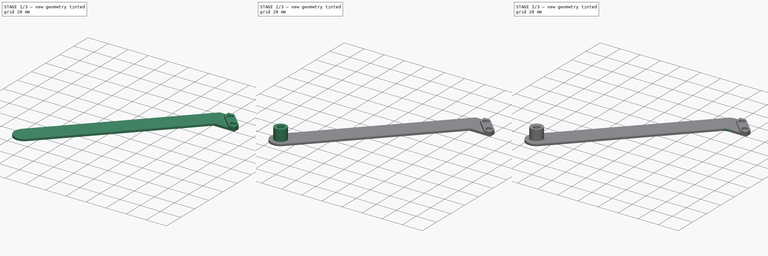
[diagram: build sequence overview — one tinted view per stage of 3, left to right]
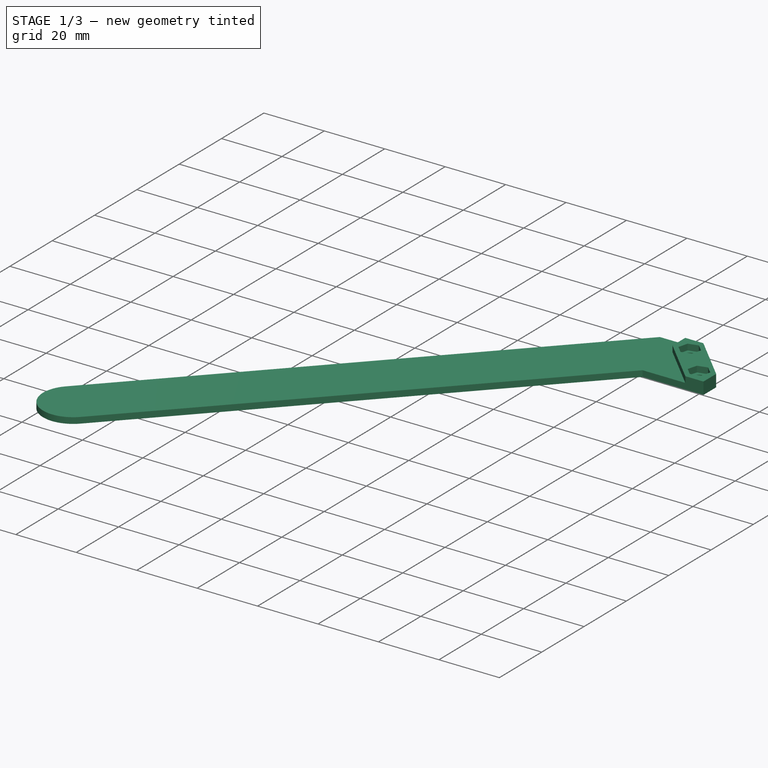
[diagram: stage 1 of 3 — iso view after this stage's code; geometry added in this stage tinted green]
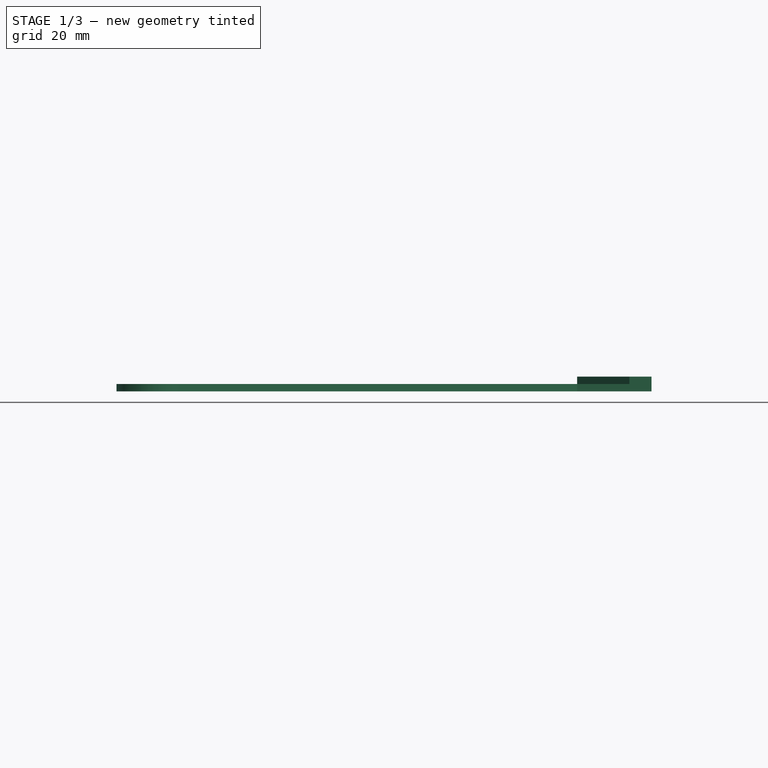
[diagram: stage 1 of 3 — front view after this stage's code; geometry added in this stage tinted green]
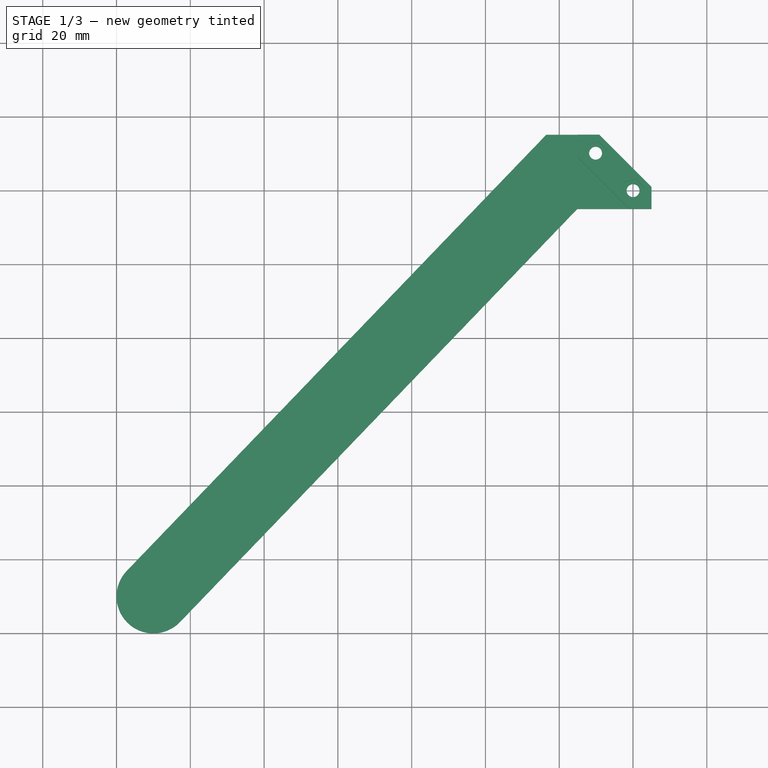
[diagram: stage 1 of 3 — top view after this stage's code; geometry added in this stage tinted green]
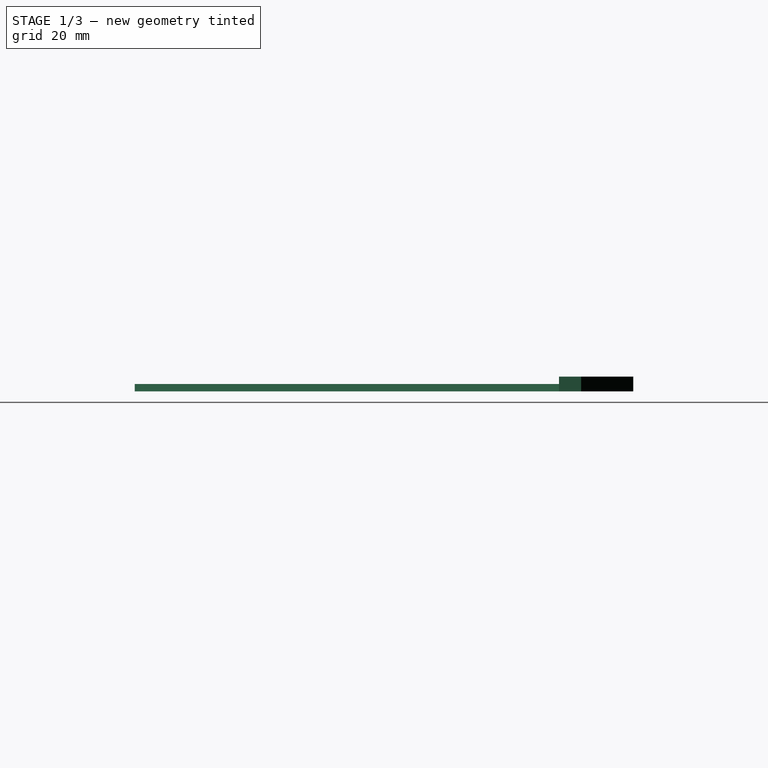
[diagram: stage 1 of 3 — right view after this stage's code; geometry added in this stage tinted green]
FCSTD DOCUMENT  (FreeCAD 0.18.4R)
Label: reel-holder-left
License: All rights reserved
LicenseURL: http://en.wikipedia.org/wiki/All_rights_reserved
objects: Sketcher::SketchObject×4, PartDesign::Pad×4, PartDesign::Chamfer×2, PartDesign::Body×1
note: 15 computed .brp shape members not serialized (recipe doc carries the construction recipe); baked Part::Feature solids carry a one-line shape summary decoded from their .brp

FEATURE [Sketcher::SketchObject] Sketch
  MapMode = 5
  Support = -> [XY_Plane]
  sketch-geometry (13):
    g0: Circle CenterX=0 CenterY=0 CenterZ=0 NormalX=0 NormalY=0 NormalZ=1 AngleXU=0 Radius=1.75
    g1: Circle CenterX=-10.15 CenterY=10.15 CenterZ=0 NormalX=0 NormalY=0 NormalZ=1 AngleXU=0 Radius=1.75
    g2: LineSegment StartX=-15.1461 StartY=15.1461 StartZ=0 EndX=-9.14607 EndY=15.1461 EndZ=0
    g3: LineSegment StartX=-9.14607 StartY=15.1461 StartZ=0 EndX=4.99607 EndY=1.00393 EndZ=0
    g4: LineSegment StartX=4.99607 StartY=1.00393 StartZ=0 EndX=4.99607 EndY=-4.99607 EndZ=0
    g5: ArcOfCircle CenterX=-130 CenterY=-110 CenterZ=0 NormalX=0 NormalY=0 NormalZ=1 AngleXU=0 Radius=10 StartAngle=2.37573 EndAngle=5.51732
    g6: LineSegment [constr] StartX=-15.1461 StartY=15.1461 StartZ=0 EndX=4.99607 EndY=-4.99607 EndZ=0
    g7: LineSegment [constr] StartX=-5.075 StartY=5.075 StartZ=0 EndX=-2.075 EndY=8.075 EndZ=0
    g8: LineSegment StartX=4.99607 StartY=-4.99607 StartZ=0 EndX=-15.1461 EndY=-4.99607 EndZ=0
    g9: LineSegment StartX=-15.1461 StartY=15.1461 StartZ=0 EndX=-23.5234 EndY=15.1461 EndZ=0
    g10: LineSegment StartX=-23.5234 StartY=15.1461 StartZ=0 EndX=-137.208 EndY=-103.068 EndZ=0
    g11: LineSegment StartX=-15.1461 StartY=-4.99607 StartZ=0 EndX=-122.792 EndY=-116.932 EndZ=0
    g12: LineSegment [constr] StartX=-15.1461 StartY=15.1461 StartZ=0 EndX=-15.1461 EndY=-4.99607 EndZ=0
  constraints (36):
    c: Coincident(g0,g-1)
    c: Diameter(g1) = 3.5
    c: Diameter(g0) = 3.5
    c: Horizontal(g2)
    c: Coincident(g2,g3)
    c: Coincident(g3,g4)
    c: Vertical(g4)
    c: DistanceX(g2,g2) = 6
    c: DistanceY(g4,g4) = 6
    c: Distance(g3) = 20
    c: Coincident(g6,g2)
    c: Coincident(g6,g4)
    c: PointOnObject(g1,g6)
    c: PointOnObject(g7,g6)
    c: PointOnObject(g7,g3)
    c: Symmetric(g2,g4,g7)
    c: Symmetric(g1,g0,g7)
    c: DistanceX(g5,g0) = 130
    c: DistanceY(g5,g0) = 110
    c: Angle(g-1,g6) = 2.35619
    c: Coincident(g8,g4)
    c: Coincident(g9,g2)
    c: Coincident(g10,g9)
    c: Coincident(g10,g5)
    c: Tangent(g10,g5)
    c: Coincident(g11,g8)
    c: Coincident(g11,g5)
    c: Horizontal(g9)
    c: Horizontal(g8)
    c: Coincident(g12,g2)
    c: Coincident(g12,g8)
    c: Vertical(g12)
    c: Parallel(g10,g11)
    c: Tangent(g5,g11)
    c: Diameter(g5) = 20
    c: DistanceX(g1,g0) = 10.15
FEATURE [PartDesign::Pad] Pad
  Length = 2
  Length2 = 100
  Profile = -> Sketch
  Reversed = true
  Type = 0
FEATURE [Sketcher::SketchObject] Sketch001
  MapMode = 5
  Support = -> [XY_Plane]
  sketch-geometry (22):
    g0: LineSegment StartX=-0.841162 StartY=-3.13926 StartZ=0 EndX=2.2981 EndY=-2.2981 EndZ=0
    g1: LineSegment StartX=2.2981 StartY=-2.2981 StartZ=0 EndX=3.13926 EndY=0.841162 EndZ=0
    g2: LineSegment StartX=3.13926 StartY=0.841162 StartZ=0 EndX=0.841162 EndY=3.13926 EndZ=0
    g3: LineSegment StartX=0.841162 StartY=3.13926 StartZ=0 EndX=-2.2981 EndY=2.2981 EndZ=0
    g4: LineSegment StartX=-2.2981 StartY=2.2981 StartZ=0 EndX=-3.13926 EndY=-0.841162 EndZ=0
    g5: LineSegment StartX=-3.13926 StartY=-0.841162 StartZ=0 EndX=-0.841162 EndY=-3.13926 EndZ=0
    g6: Circle [constr] CenterX=0 CenterY=0 CenterZ=0 NormalX=0 NormalY=0 NormalZ=1 AngleXU=0 Radius=3.25
    g7: LineSegment StartX=-7.8519 StartY=7.8519 StartZ=0 EndX=-7.01074 EndY=10.9912 EndZ=0
    g8: LineSegment StartX=-7.01074 StartY=10.9912 StartZ=0 EndX=-9.30884 EndY=13.2893 EndZ=0
    g9: LineSegment StartX=-9.30884 StartY=13.2893 StartZ=0 EndX=-12.4481 EndY=12.4481 EndZ=0
    g10: LineSegment StartX=-12.4481 StartY=12.4481 StartZ=0 EndX=-13.2893 EndY=9.30884 EndZ=0
    g11: LineSegment StartX=-13.2893 StartY=9.30884 StartZ=0 EndX=-10.9912 EndY=7.01074 EndZ=0
    g12: LineSegment StartX=-10.9912 StartY=7.01074 StartZ=0 EndX=-7.8519 EndY=7.8519 EndZ=0
    g13: Circle [constr] CenterX=-10.15 CenterY=10.15 CenterZ=0 NormalX=0 NormalY=0 NormalZ=1 AngleXU=0 Radius=3.25
    g14: LineSegment StartX=-9.14607 StartY=15.1461 StartZ=0 EndX=-15.1461 EndY=15.1461 EndZ=0
    g15: LineSegment StartX=-15.1461 StartY=15.1461 StartZ=0 EndX=-15.1461 EndY=9.14607 EndZ=0
    g16: LineSegment StartX=-15.1461 StartY=9.14607 StartZ=0 EndX=-1.00393 EndY=-4.99607 EndZ=0
    g17: LineSegment StartX=-1.00393 StartY=-4.99607 StartZ=0 EndX=4.99607 EndY=-4.99607 EndZ=0
    g18: LineSegment StartX=4.99607 StartY=-4.99607 StartZ=0 EndX=4.99607 EndY=1.00393 EndZ=0
    g19: LineSegment StartX=4.99607 StartY=1.00393 StartZ=0 EndX=-9.14607 EndY=15.1461 EndZ=0
    g20: LineSegment [constr] StartX=-10.15 StartY=10.15 StartZ=0 EndX=0 EndY=0 EndZ=0
    g21: LineSegment [constr] StartX=-5.075 StartY=5.075 StartZ=0 EndX=-2.075 EndY=8.075 EndZ=0
  constraints (55):
    c: Coincident(g0,g1)
    c: Coincident(g1,g2)
    c: Coincident(g2,g3)
    c: Coincident(g3,g4)
    c: Coincident(g4,g5)
    c: Coincident(g5,g0)
    c: Equal(g0, g1-g5) x5
    c: PointOnObject(g0,g6)
    c: PointOnObject(g1,g6)
    c: PointOnObject(g2,g6)
    c: PointOnObject(g3,g6)
    c: PointOnObject(g4,g6)
    c: PointOnObject(g5,g6)
    c: Coincident(g6,g-1)
    c: Coincident(g7,g8)
    c: Coincident(g8,g9)
    c: Coincident(g9,g10)
    c: Coincident(g10,g11)
    c: Coincident(g11,g12)
    c: Coincident(g12,g7)
    c: Equal(g7, g8-g12) x5
    c: PointOnObject(g7,g13)
    c: PointOnObject(g8,g13)
    c: PointOnObject(g9,g13)
    c: PointOnObject(g10,g13)
    c: PointOnObject(g11,g13)
    c: PointOnObject(g12,g13)
    c: Diameter(g13) = 6.5
    c: Diameter(g6) = 6.5
    c: Horizontal(g14)
    c: Coincident(g14,g15)
    c: Vertical(g15)
    c: Coincident(g15,g16)
    c: Coincident(g16,g17)
    c: Horizontal(g17)
    c: Coincident(g17,g18)
    c: Coincident(g18,g19)
    c: Coincident(g19,g14)
    c: Vertical(g18)
    c: Parallel(g19,g16)
    c: Distance(g19) = 20
    c: Equal(g19,g16)
    c: Equal(g14,g15)
    c: DistanceX(g14,g14) = 6
    c: Coincident(g20,g13)
    c: Coincident(g20,g-1)
    c: PointOnObject(g21,g20)
    c: PointOnObject(g21,g19)
    c: Symmetric(g13,g-1,g21)
    c: Symmetric(g14,g18,g21)
    c: PointOnObject(g14,g20)
    c: Angle(g-1,g20) = 2.35619
    c: Parallel(g2,g19)
    c: Parallel(g8,g19)
    c: DistanceX(g13,g-1) = 10.15
FEATURE [PartDesign::Pad] Pad001
  BaseFeature = -> Pad
  Length = 2
  Length2 = 100
  Profile = -> Sketch001
  Type = 0
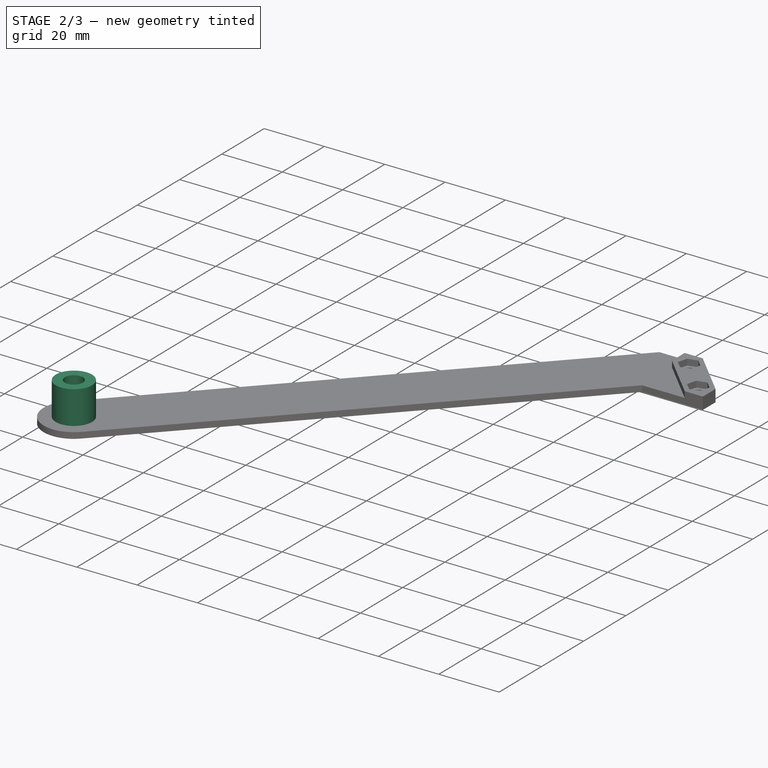
[diagram: stage 2 of 3 — iso view after this stage's code; geometry added in this stage tinted green]
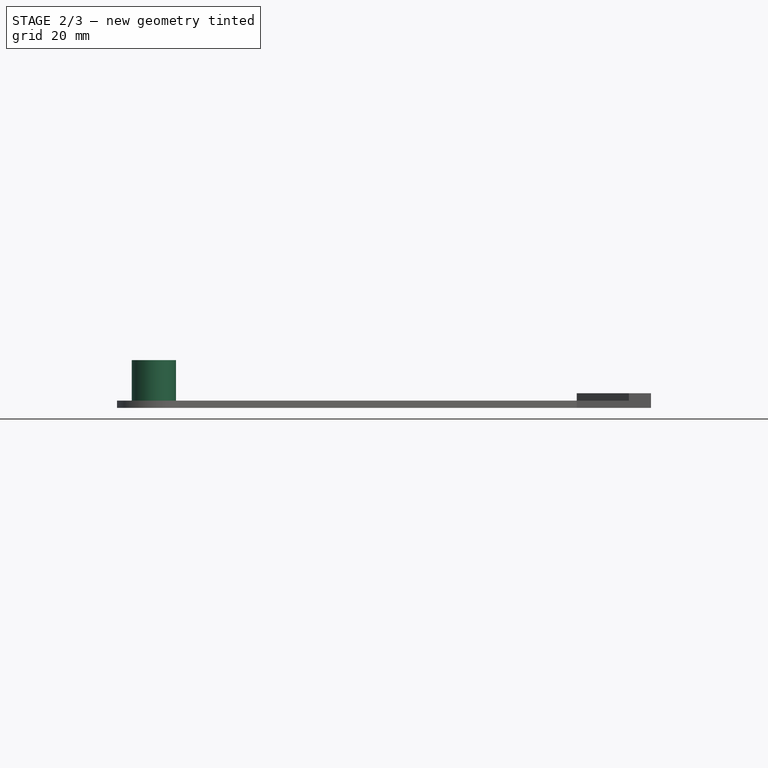
[diagram: stage 2 of 3 — front view after this stage's code; geometry added in this stage tinted green]
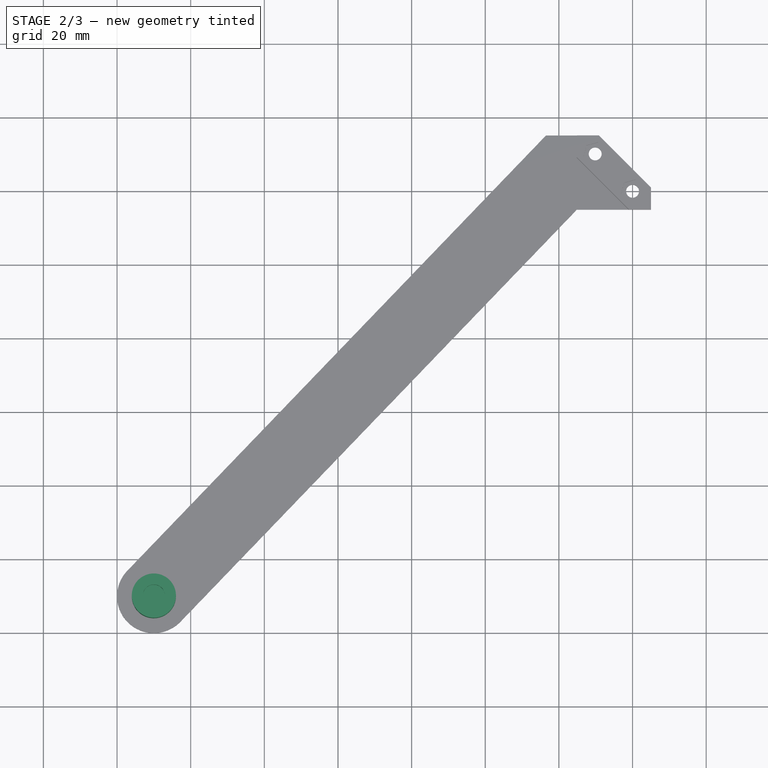
[diagram: stage 2 of 3 — top view after this stage's code; geometry added in this stage tinted green]
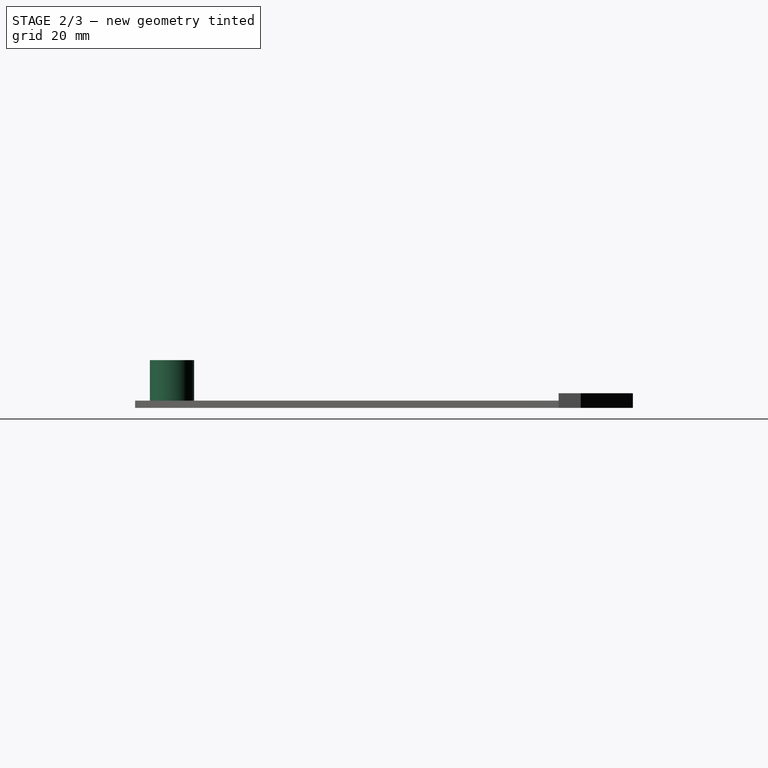
[diagram: stage 2 of 3 — right view after this stage's code; geometry added in this stage tinted green]
FEATURE [Sketcher::SketchObject] Sketch002
  MapMode = 5
  Support = -> [XY_Plane]
  sketch-geometry (1):
    g0: Circle CenterX=-130 CenterY=-110 CenterZ=0 NormalX=0 NormalY=0 NormalZ=1 AngleXU=0 Radius=3.25
  constraints (3):
    c: Diameter(g0) = 6.5
    c: DistanceX(g0,g-1) = 130
    c: DistanceY(g0,g-1) = 110
FEATURE [PartDesign::Pad] Pad002
  BaseFeature = -> Pad001
  Length = 7
  Length2 = 100
  Profile = -> Sketch002
  Type = 0
FEATURE [Sketcher::SketchObject] Sketch003
  MapMode = 5
  Support = -> [XY_Plane]
  sketch-geometry (2):
    g0: Circle CenterX=-130 CenterY=-110 CenterZ=0 NormalX=0 NormalY=0 NormalZ=1 AngleXU=0 Radius=6
    g1: Circle CenterX=-130 CenterY=-110 CenterZ=0 NormalX=0 NormalY=0 NormalZ=1 AngleXU=0 Radius=3
  constraints (5):
    c: Coincident(g1,g0)
    c: Diameter(g0) = 12
    c: Diameter(g1) = 6
    c: DistanceX(g0,g-1) = 130
    c: DistanceY(g0,g-1) = 110
FEATURE [PartDesign::Pad] Pad003
  BaseFeature = -> Pad002
  Length = 11
  Length2 = 100
  Profile = -> Sketch003
  Type = 0
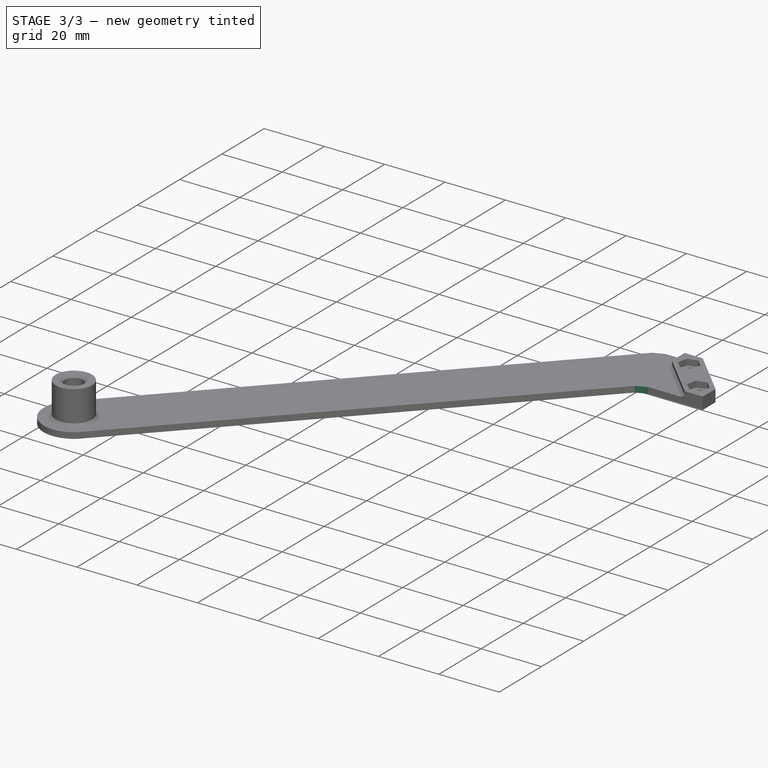
[diagram: stage 3 of 3 — iso view after this stage's code; geometry added in this stage tinted green]
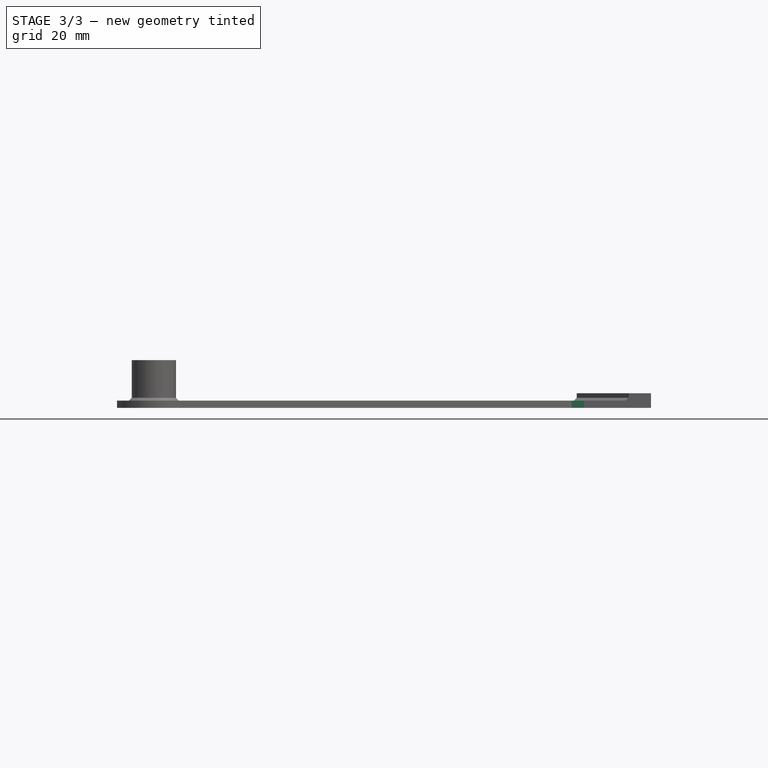
[diagram: stage 3 of 3 — front view after this stage's code; geometry added in this stage tinted green]
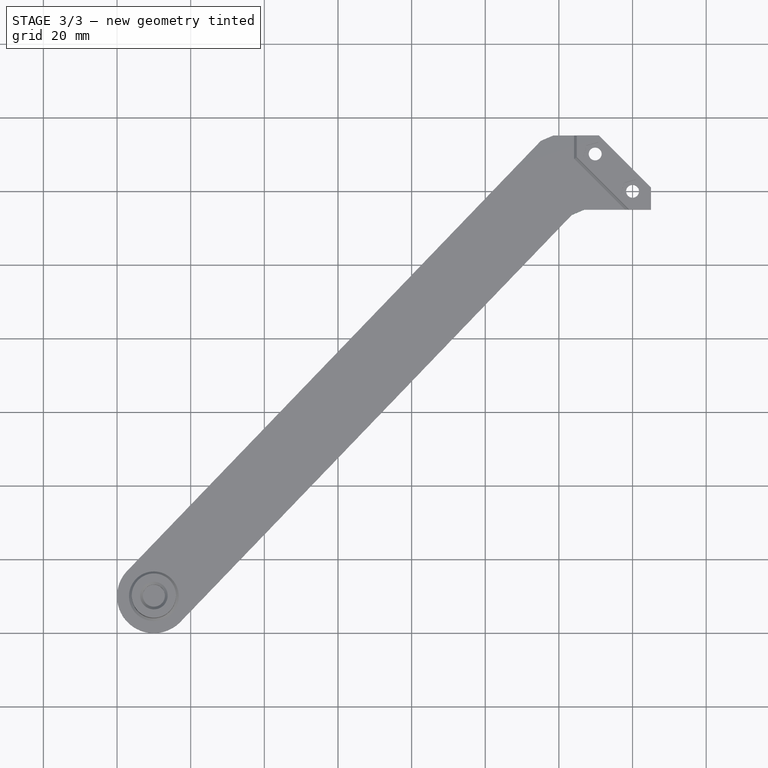
[diagram: stage 3 of 3 — top view after this stage's code; geometry added in this stage tinted green]
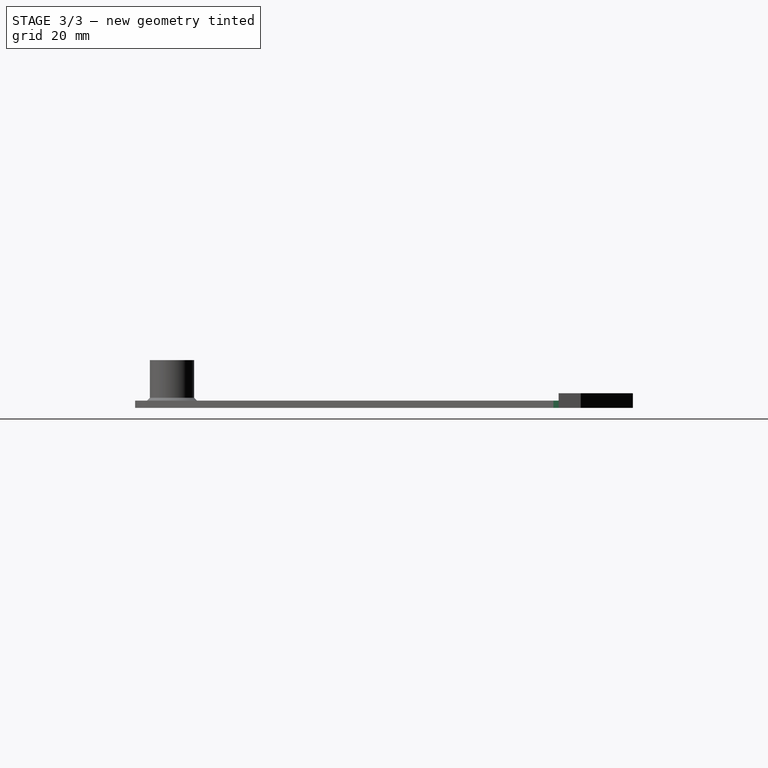
[diagram: stage 3 of 3 — right view after this stage's code; geometry added in this stage tinted green]
FEATURE [PartDesign::Chamfer] Chamfer
  Base = -> Pad003 [Edge35,Edge2]
  BaseFeature = -> Pad003
  Size = 2
FEATURE [PartDesign::Chamfer] Chamfer001
  Base = -> Chamfer [Edge66,Edge13,Edge8,Edge6]
  BaseFeature = -> Chamfer
  Size = 0.75
FEATURE [PartDesign::Body] Body
  Group = -> [Sketch,Pad,Sketch001,Pad001,Sketch002,Pad002,Sketch003,Pad003,Chamfer,Chamfer001]
  Origin = -> Origin
  Tip = -> Chamfer001
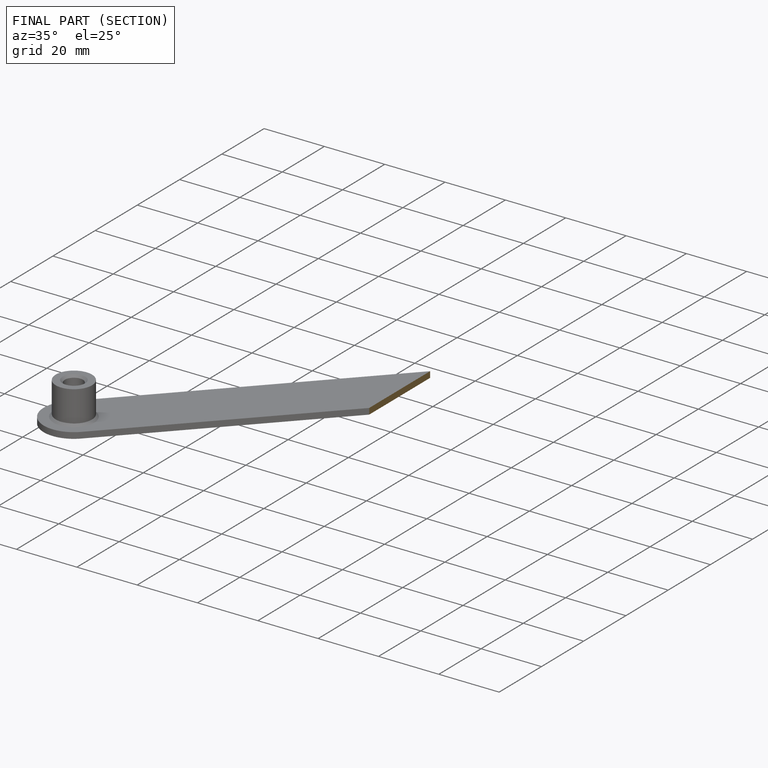
[diagram: finished part — half-section view (interior)]
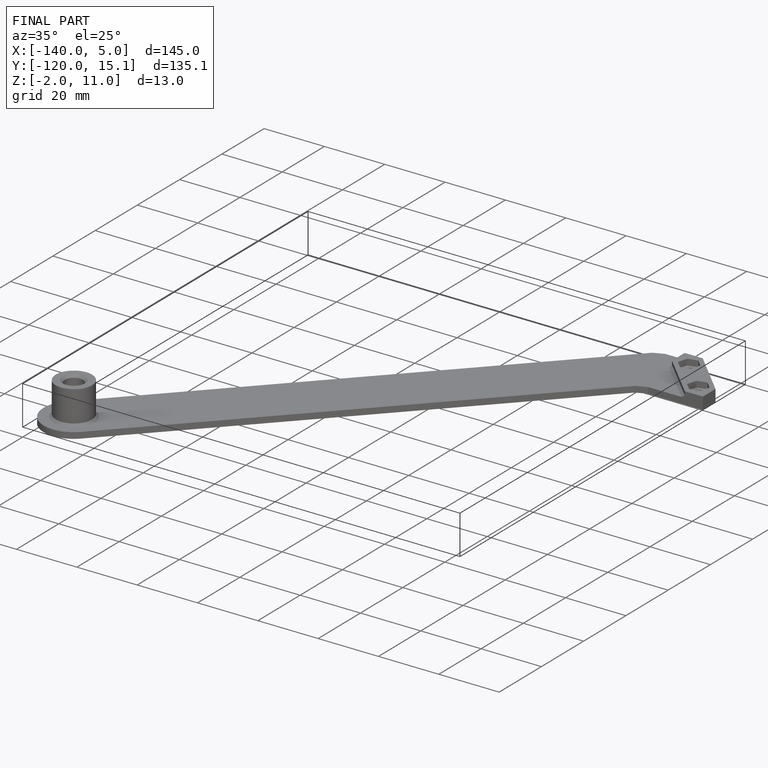
[diagram: finished part — iso view with bounding-box wireframe]
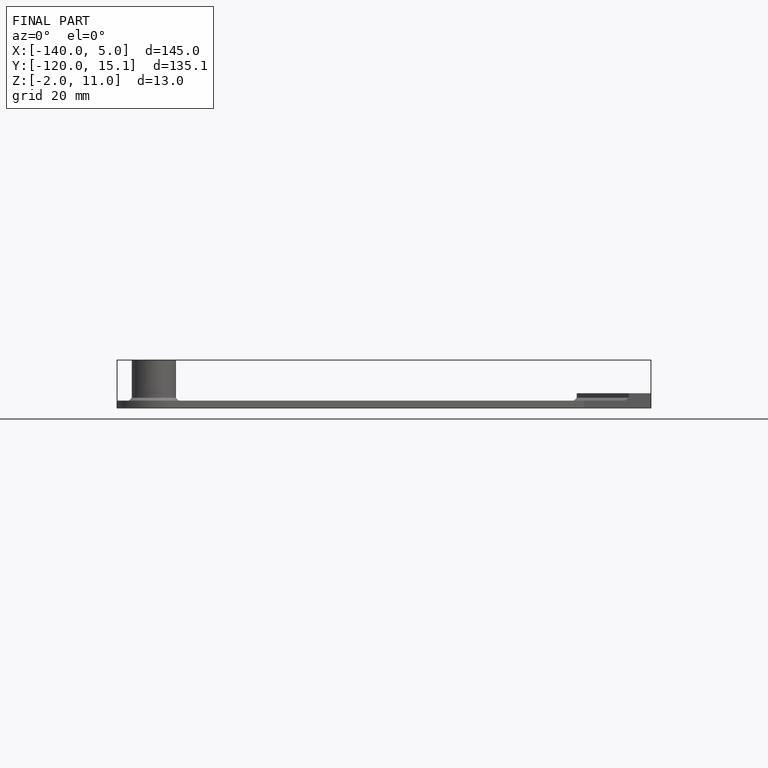
[diagram: finished part — front view with bounding-box wireframe]
